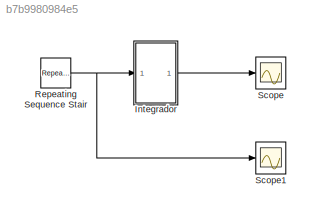
MODEL slx_b7b9980984e5
KIND model
CONFIG AbsTol = auto
CONFIG EnableMultiTasking = off
CONFIG FixedStep = auto
CONFIG MaxStep = auto
CONFIG MinStep = auto
CONFIG RelTol = 1e-3
CONFIG SampleTimeConstraint = Unconstrained
CONFIG SolverName = FixedStepDiscrete
CONFIG StartTime = 0.0
CONFIG StopTime = 1000/100000000
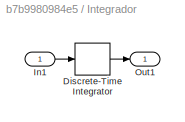
BLOCK [SubSystem] Integrador
BLOCK [DiscreteIntegrator] Integrador/Discrete-Time Integrator
  ICPrevOutput = DiscIntNeverNeededParam
  ICPrevScaledInput = DiscIntNeverNeededParam
  InitialConditionSetting = Auto
  SampleTime = 100/100000000
BLOCK [Inport] Integrador/In1
BLOCK [Outport] Integrador/Out1
BLOCK [Reference] Repeating Sequence Stair  REF=simulink/Sources/Repeating
Sequence
Stair
  SourceBlock = simulink/Sources/Repeating\nSequence\nStair
  SourceType = Repeating Sequence Stair
BLOCK [Scope] Scope
  ActiveDisplayYMaximum = 2.5970401785714289E-6
  ActiveDisplayYMinimum = -5.864285714285722E-7
  ContainerLayout = {"WindowBounds":[486,136,1296,807],"gridDimensions":{"w":2,"h":1},"tileCount":2,"tileCoverage":[1,2],"columnWeights":[0.5003909304143862,0.49960906958561374],"rowWeights":1,"tileOccupancy":[{"children":{"id":"/Scope1"}},{"children":{"id":"/Scope"}}]}
  Floating = off
  GraphicalSettings = {"Style":{"BackgroundColor":[0.12941176470588237,0.12941176470588237,0.12941176470588237],"AxesColor":[0.07058823529411765,0.07058823529411765,0.07058823529411765],"LabelsColor":[0.8509803921568627,0.8509803921568627,0.8509803921568627],"PreserveColors":false,"Visible":[true],"LineStyle":["-"],"LineWidth":[1.5],"BarWidth":[0.9],"LineColor":["auto"],"LineFaceAlpha":[1],"LineEdgeAlpha":[1],"Marker":...<+2377ch>
  LayoutDimensionsString = [1 2]
  MultipleDisplayCache = [{"MaxYLimMag":2.4750000000000004E-6,"MaxYLimReal":2.5970401785714289E-6,"MinYLimMag":0,"MinYLimReal":-5.864285714285722E-7,"PlotAsMagnitudePhase":false,"ShowGrid":true,"ShowLegend":false,"Title":"%<SignalLabel>","YLabel":""},{"MaxYLimMag":2.4750000000000004E-6,"MaxYLimReal":2.5970401785714289E-6,"MinYLimMag":0,"MinYLimReal":-5.864285714285722E-7,"PlotAsMagnitudePhase":false,"ShowGrid":true,"ShowL...<+51ch>
  NumInputPorts = 1
  ScopeFrameLocation = container
  Visible = on
  WasSavedAsWebScope = on
  WindowPosition = [495.000000,146.000000,1280.000000,768.000000,]
BLOCK [Scope] Scope1
  ActiveDisplayYMaximum = 4.5867799725673883
  ActiveDisplayYMinimum = 0.24568622256738726
  ContainerLayout = {"WindowBounds":[486,136,1296,807],"gridDimensions":{"w":2,"h":1},"tileCount":2,"tileCoverage":[1,2],"columnWeights":[0.5003909304143862,0.49960906958561374],"rowWeights":1,"tileOccupancy":[{"children":{"id":"/Scope1"}},{"children":{"id":"/Scope"}}]}
  DataLoggingVariableName = ScopeData1
  Floating = off
  GraphicalSettings = {"AxesScalingProperties":{"AlignXAxis":"Center","AlignYAxis":"Center","AutoScaleXAxisLimits":false,"AxesScaling":"Manual","AxesScalingNumUpdates":10,"ExpandOnly":true,"ScaleAxesLimitsAtStop":false,"XAxisDataRange":100,"YAxisDataRange":80},"DisplayProperties":{"ColorOrder":["auto","auto","auto","auto","auto","auto","auto","auto","auto","auto","auto","auto","auto","auto","auto","auto","auto","auto",...<+2024ch>
  MultipleDisplayCache = [{"MaxYLimMag":4.375,"MaxYLimReal":4.5867799725673883,"MinYLimMag":0.62500000000000011,"MinYLimReal":0.24568622256738726,"PlotAsMagnitudePhase":false,"ShowGrid":true,"ShowLegend":false,"Title":"%<SignalLabel>","YLabel":""}]
  NumInputPorts = 1
  ScopeFrameLocation = container
  Visible = on
  WasSavedAsWebScope = on
  WindowPosition = [495.000000,146.000000,1280.000000,768.000000,]
LINE Integrador/Discrete-Time Integrator:1 -> Integrador/Out1:1
LINE Integrador/In1:1 -> Integrador/Discrete-Time Integrator:1
LINE Integrador:1 -> Scope:1
NET Repeating Sequence Stair:1 -> Integrador:1, Scope1:1
note: NET lines group one-source signal fan-out (src -> all destinations, sorted); 1:1 wires keep LINE
